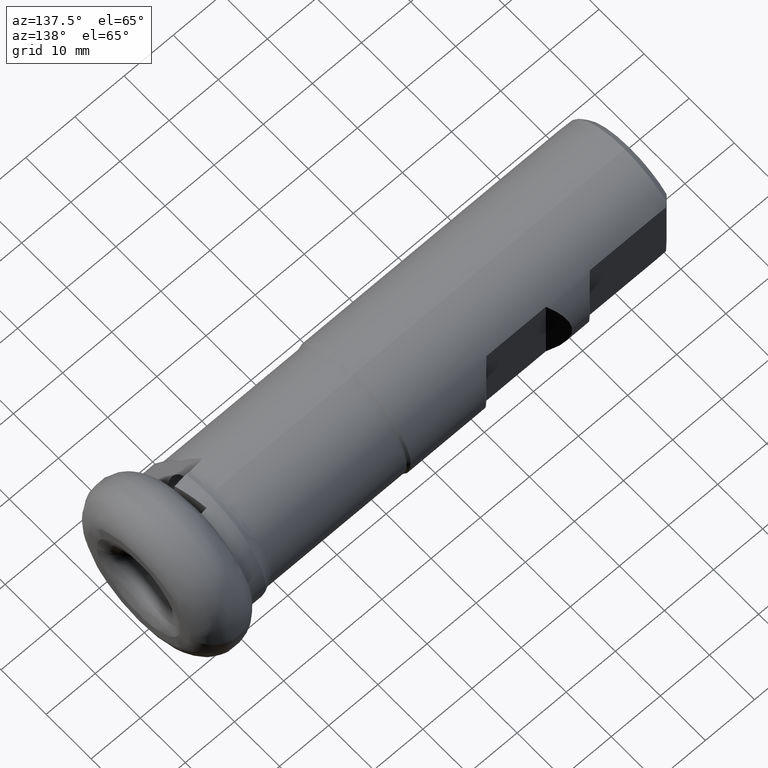
[diagram: clean part render]
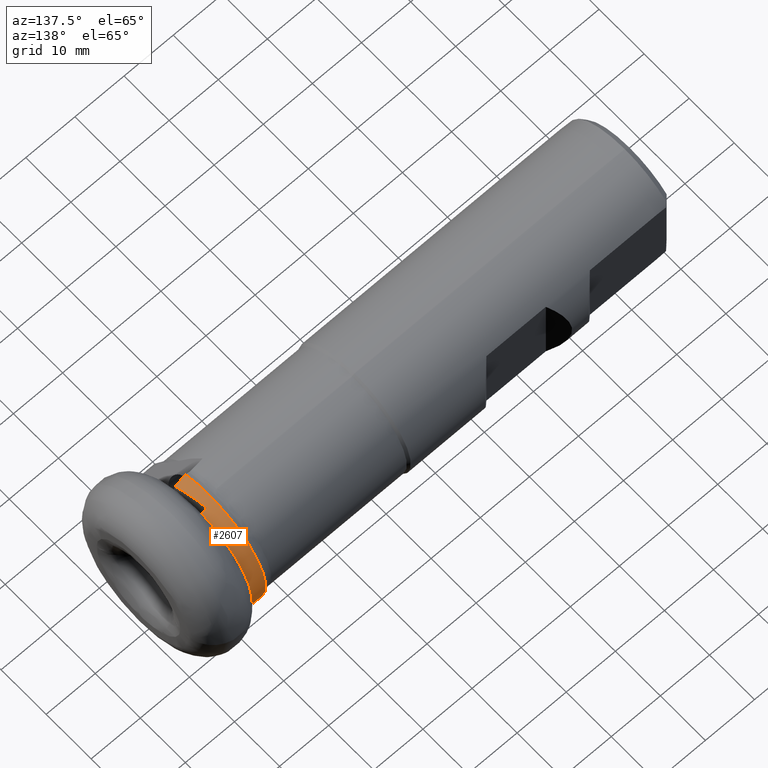
[diagram: same view with one face highlighted and labeled with its STEP entity id]
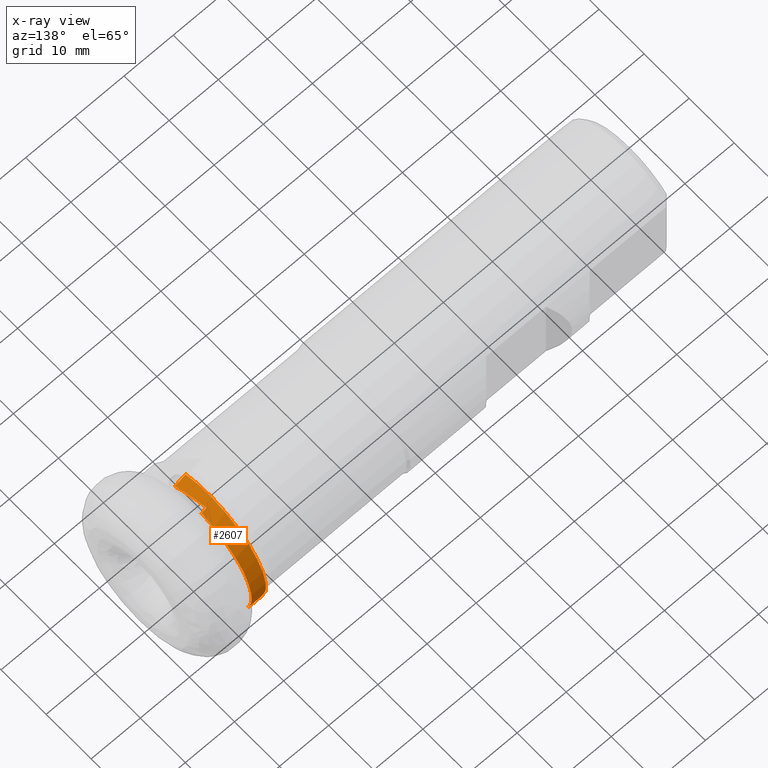
[diagram: x-ray of the same camera — body ghosted, the highlighted face saturated]
A machine part, auxiliary view. The second image highlights one B-rep face of the part: STEP entity #2607.
The next image is the same camera in x-ray: the body ghosted, the highlighted face saturated — about 0% of this face is hidden behind the body in this view.
In plain terms, the highlighted cylindrical surface (partial cylindrical patch) has radius 12.8 mm, axis along (1, -0, -0).
Its self-contained STEP definition (entity closure, byte-faithful):
#6 = ORIENTED_EDGE ( 'NONE', *, *, #4228, .F. ) ;
#7 = CARTESIAN_POINT ( 'NONE',  ( -10.10000000000000100, 0.0000000000000000000, 0.0000000000000000000 ) ) ;
#21 = DIRECTION ( 'NONE',  ( 1.000000000000000000, -0.0000000000000000000, -0.0000000000000000000 ) ) ;
#54 = VERTEX_POINT ( 'NONE', #1600 ) ;
#69 = CARTESIAN_POINT ( 'NONE',  ( -10.40488679224093700, -4.644380604541932900, 11.92768748752895100 ) ) ;
#118 = VERTEX_POINT ( 'NONE', #3098 ) ;
#133 = EDGE_CURVE ( 'NONE', #2134, #852, #1214, .T. ) ;
#136 = CARTESIAN_POINT ( 'NONE',  ( -10.87819712012612600, 1.550030916519258700, 12.70592157763043600 ) ) ;
#199 = CARTESIAN_POINT ( 'NONE',  ( -11.26776001819334300, 1.495281421655809700, 12.71236144349471400 ) ) ;
#375 = VERTEX_POINT ( 'NONE', #3372 ) ;
#454 = EDGE_CURVE ( 'NONE', #2134, #118, #2109, .T. ) ;
#476 = CARTESIAN_POINT ( 'NONE',  ( -10.48893836571081600, 1.604737666780000400, 12.69912815904610100 ) ) ;
#567 = DIRECTION ( 'NONE',  ( 0.0000000000000000000, 0.0000000000000000000, -1.000000000000000000 ) ) ;
#591 = CARTESIAN_POINT ( 'NONE',  ( -10.40488679224093700, -4.644380604541932900, 11.92768748752895100 ) ) ;
#711 = CARTESIAN_POINT ( 'NONE',  ( -10.50036365571051900, 11.81942185096442400, -4.913376345136276400 ) ) ;
#716 = ORIENTED_EDGE ( 'NONE', *, *, #3182, .T. ) ;
#743 = CYLINDRICAL_SURFACE ( 'NONE', #3749, 12.80000000000000100 ) ;
#852 = VERTEX_POINT ( 'NONE', #3128 ) ;
#864 = CARTESIAN_POINT ( 'NONE',  ( -13.00000000000000000, 10.46421511142436100, -7.371580705780689700 ) ) ;
#948 = DIRECTION ( 'NONE',  ( 1.000000000000000000, -0.0000000000000000000, -0.0000000000000000000 ) ) ;
#1022 = AXIS2_PLACEMENT_3D ( 'NONE', #7, #21, #3061 ) ;
#1038 = CARTESIAN_POINT ( 'NONE',  ( -10.10000000000000100, 11.96657443364948400, -4.543247332462379400 ) ) ;
#1041 =( BOUNDED_CURVE ( )  B_SPLINE_CURVE ( 3, ( #711, #3121, #1463, #3552 ),
 .UNSPECIFIED., .F., .T. ) 
 B_SPLINE_CURVE_WITH_KNOTS ( ( 4, 4 ),
 ( 1.816257006806145400, 2.035997172556526000 ),
 .UNSPECIFIED. ) 
 CURVE ( )  GEOMETRIC_REPRESENTATION_ITEM ( )  RATIONAL_B_SPLINE_CURVE ( ( 1.000000000000000000, 0.9959802344330960200, 0.9959802344330960200, 1.000000000000000000 ) ) 
 REPRESENTATION_ITEM ( '' )  );
#1085 = CARTESIAN_POINT ( 'NONE',  ( -11.27530932627147700, -4.766710514018355700, 11.88005489659113000 ) ) ;
#1171 = ORIENTED_EDGE ( 'NONE', *, *, #1605, .F. ) ;
#1214 = B_SPLINE_CURVE_WITH_KNOTS ( 'NONE', 3,
 ( #1038, #4156, #2766, #3168 ),
 .UNSPECIFIED., .F., .F.,
 ( 4, 4 ),
 ( 0.0000000000000000000, 0.0005647481079452381500 ),
 .UNSPECIFIED. ) ;
#1277 = ORIENTED_EDGE ( 'NONE', *, *, #454, .F. ) ;
#1312 = EDGE_CURVE ( 'NONE', #375, #118, #3431, .T. ) ;
#1377 = ORIENTED_EDGE ( 'NONE', *, *, #1312, .T. ) ;
#1463 = CARTESIAN_POINT ( 'NONE',  ( -12.20250850539327700, 11.00524839919147400, -6.603565142823267600 ) ) ;
#1600 = CARTESIAN_POINT ( 'NONE',  ( -10.40488679224093700, -4.644380604541932900, 11.92768748752895100 ) ) ;
#1605 = EDGE_CURVE ( 'NONE', #54, #4105, #2152, .T. ) ;
#1612 = AXIS2_PLACEMENT_3D ( 'NONE', #3328, #948, #567 ) ;
#1772 = CARTESIAN_POINT ( 'NONE',  ( -13.00000000000000200, -5.009099980907594200, 11.77917303469439500 ) ) ;
#1785 = CARTESIAN_POINT ( 'NONE',  ( -10.10000000000000100, 11.96657443364948400, -4.543247332462379400 ) ) ;
#2068 = ORIENTED_EDGE ( 'NONE', *, *, #2317, .T. ) ;
#2109 = CIRCLE ( 'NONE', #1022, 12.80000000000000100 ) ;
#2134 = VERTEX_POINT ( 'NONE', #1785 ) ;
#2152 =( BOUNDED_CURVE ( )  B_SPLINE_CURVE ( 3, ( #69, #1085, #3510, #1772 ),
 .UNSPECIFIED., .F., .T. ) 
 B_SPLINE_CURVE_WITH_KNOTS ( ( 4, 4 ),
 ( 1.942112512946081400, 1.972879185374127700 ),
 .UNSPECIFIED. ) 
 CURVE ( )  GEOMETRIC_REPRESENTATION_ITEM ( )  RATIONAL_B_SPLINE_CURVE ( ( 1.000000000000000000, 0.9999211192112358300, 0.9999211192112358300, 1.000000000000000000 ) ) 
 REPRESENTATION_ITEM ( '' )  );
#2187 = CARTESIAN_POINT ( 'NONE',  ( -11.26776001819334300, 1.495281421655809700, 12.71236144349471400 ) ) ;
#2313 = CARTESIAN_POINT ( 'NONE',  ( -10.68054214934690200, -2.682990822777132900, 12.69140976562347400 ) ) ;
#2317 = EDGE_CURVE ( 'NONE', #4197, #4105, #2558, .T. ) ;
#2558 = CIRCLE ( 'NONE', #1612, 12.80000000000000100 ) ;
#2607 = ADVANCED_FACE ( 'NONE', ( #3042 ), #743, .T. ) ;
#2617 = CARTESIAN_POINT ( 'NONE',  ( -10.97397041840457500, -0.5951402014325752900, 12.95824562719460200 ) ) ;
#2766 = CARTESIAN_POINT ( 'NONE',  ( -10.37267763890778500, 11.87261853799919100, -4.785408519964477100 ) ) ;
#2848 = DIRECTION ( 'NONE',  ( 1.000000000000000000, -0.0000000000000000000, -0.0000000000000000000 ) ) ;
#3042 = FACE_OUTER_BOUND ( 'NONE', #3253, .T. ) ;
#3061 = DIRECTION ( 'NONE',  ( 0.0000000000000000000, 0.0000000000000000000, -1.000000000000000000 ) ) ;
#3098 = CARTESIAN_POINT ( 'NONE',  ( -10.10000000000000100, 1.659399389344781600, 12.69198147125349900 ) ) ;
#3121 = CARTESIAN_POINT ( 'NONE',  ( -11.36593355545221100, 11.45880717900381800, -5.780856593778080000 ) ) ;
#3128 = CARTESIAN_POINT ( 'NONE',  ( -10.50036365571051900, 11.81942185096442400, -4.913376345136276400 ) ) ;
#3168 = CARTESIAN_POINT ( 'NONE',  ( -10.50036365571051900, 11.81942185096442400, -4.913376345136276400 ) ) ;
#3182 = EDGE_CURVE ( 'NONE', #852, #4197, #1041, .T. ) ;
#3253 = EDGE_LOOP ( 'NONE', ( #6, #1377, #1277, #3279, #716, #2068, #1171 ) ) ;
#3279 = ORIENTED_EDGE ( 'NONE', *, *, #133, .T. ) ;
#3328 = CARTESIAN_POINT ( 'NONE',  ( -13.00000000000000000, 0.0000000000000000000, 0.0000000000000000000 ) ) ;
#3372 = CARTESIAN_POINT ( 'NONE',  ( -11.26776001819334300, 1.495281421655809700, 12.71236144349471400 ) ) ;
#3431 =( BOUNDED_CURVE ( )  B_SPLINE_CURVE ( 3, ( #199, #136, #476, #3966 ),
 .UNSPECIFIED., .F., .T. ) 
 B_SPLINE_CURVE_WITH_KNOTS ( ( 4, 4 ),
 ( 4.829475184089407200, 4.842395469818813000 ),
 .UNSPECIFIED. ) 
 CURVE ( )  GEOMETRIC_REPRESENTATION_ITEM ( )  RATIONAL_B_SPLINE_CURVE ( ( 1.000000000000000000, 0.9999860888997691400, 0.9999860888997691400, 1.000000000000000000 ) ) 
 REPRESENTATION_ITEM ( '' )  );
#3510 = CARTESIAN_POINT ( 'NONE',  ( -12.14041530243291200, -4.888293230014111800, 11.83054617369250200 ) ) ;
#3550 = DIRECTION ( 'NONE',  ( 0.0000000000000000000, 0.0000000000000000000, -1.000000000000000000 ) ) ;
#3552 = CARTESIAN_POINT ( 'NONE',  ( -13.00000000000000000, 10.46421511142436100, -7.371580705780689700 ) ) ;
#3749 = AXIS2_PLACEMENT_3D ( 'NONE', #4176, #2848, #3550 ) ;
#3787 =( BOUNDED_CURVE ( )  B_SPLINE_CURVE ( 3, ( #2187, #2617, #2313, #591 ),
 .UNSPECIFIED., .F., .T. ) 
 B_SPLINE_CURVE_WITH_KNOTS ( ( 4, 4 ),
 ( 4.595302776679969400, 5.083705166535871500 ),
 .UNSPECIFIED. ) 
 CURVE ( )  GEOMETRIC_REPRESENTATION_ITEM ( )  RATIONAL_B_SPLINE_CURVE ( ( 1.000000000000000000, 0.9802205137715358500, 0.9802205137715358500, 1.000000000000000000 ) ) 
 REPRESENTATION_ITEM ( '' )  );
#3914 = CARTESIAN_POINT ( 'NONE',  ( -13.00000000000000200, -5.009099980907594200, 11.77917303469439500 ) ) ;
#3966 = CARTESIAN_POINT ( 'NONE',  ( -10.10000000000000100, 1.659399389344781600, 12.69198147125349900 ) ) ;
#4105 = VERTEX_POINT ( 'NONE', #3914 ) ;
#4156 = CARTESIAN_POINT ( 'NONE',  ( -10.23927830010638800, 11.92152141384218000, -4.661913624550990700 ) ) ;
#4176 = CARTESIAN_POINT ( 'NONE',  ( 0.0000000000000000000, 0.0000000000000000000, 0.0000000000000000000 ) ) ;
#4197 = VERTEX_POINT ( 'NONE', #864 ) ;
#4228 = EDGE_CURVE ( 'NONE', #375, #54, #3787, .T. ) ;